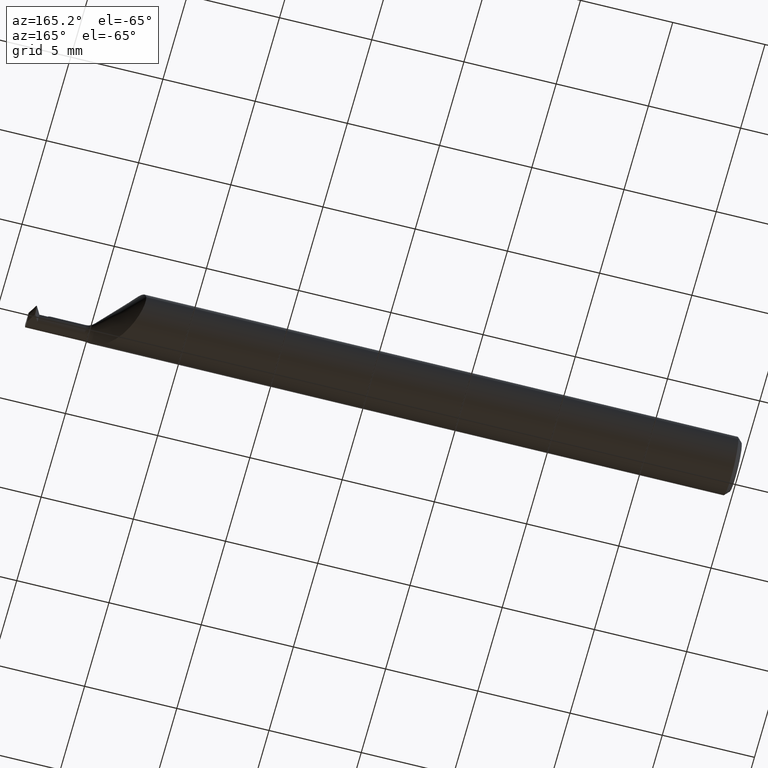
[diagram: clean part render]
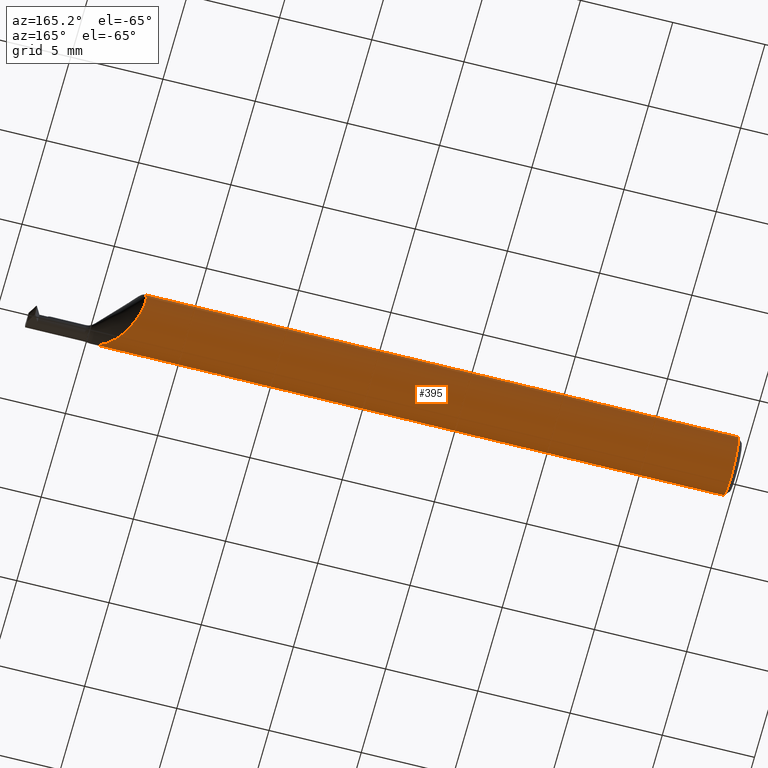
[diagram: same view with one face highlighted and labeled with its STEP entity id]
A machine part, auxiliary view. The second image highlights one B-rep face of the part: STEP entity #395.
In plain terms, the highlighted cylindrical surface (edge-blend (fillet) strip) has radius 1.5837 mm, axis along (-1, -0, -0).
Its self-contained STEP definition (entity closure, byte-faithful):
#22 = VERTEX_POINT ( 'NONE', #556 ) ;
#24 = DIRECTION ( 'NONE',  ( -1.000000000000000000, -0.000000000000000000, -0.000000000000000000 ) ) ;
#33 = VECTOR ( 'NONE', #242, 39.37007874015748143 ) ;
#36 = AXIS2_PLACEMENT_3D ( 'NONE', #572, #491, #684 ) ;
#41 = CARTESIAN_POINT ( 'NONE',  ( 1.459999999999999964, -0.06235000000000005121, 4.898587196589446663E-18 ) ) ;
#44 = CYLINDRICAL_SURFACE ( 'NONE', #559, 0.06235000000000000264 ) ;
#46 = CARTESIAN_POINT ( 'NONE',  ( 1.324061247341834946, -0.02612594253902928570, -0.05678370293744689629 ) ) ;
#53 = CARTESIAN_POINT ( 'NONE',  ( 1.378000000000000114, -0.06108080859774815685, 0.01251628223735995644 ) ) ;
#59 = CARTESIAN_POINT ( 'NONE',  ( 1.287253451677763394, 0.03386738844375224849, 0.05234999999999997294 ) ) ;
#72 = ORIENTED_EDGE ( 'NONE', *, *, #500, .T. ) ;
#78 = VECTOR ( 'NONE', #585, 39.37007874015748143 ) ;
#79 = FACE_OUTER_BOUND ( 'NONE', #706, .T. ) ;
#80 = CARTESIAN_POINT ( 'NONE',  ( 1.362456224277631245, -0.05899317650530151724, 0.02039327012283555923 ) ) ;
#84 = CARTESIAN_POINT ( 'NONE',  ( 1.287253451677763394, 0.03386738844375224849, 0.05234999999999997294 ) ) ;
#89 = CARTESIAN_POINT ( 'NONE',  ( 1.365005209892370397, -0.05976161622093305315, -0.01789465587661732970 ) ) ;
#92 = EDGE_CURVE ( 'NONE', #472, #298, #237, .T. ) ;
#95 = CARTESIAN_POINT ( 'NONE',  ( 1.447483717762639843, -0.06108080859774818461, 0.01251628223735992869 ) ) ;
#102 = EDGE_CURVE ( 'NONE', #337, #723, #127, .T. ) ;
#105 = CIRCLE ( 'NONE', #285, 0.06235000000000000264 ) ;
#106 = CIRCLE ( 'NONE', #36, 0.06235000000000000264 ) ;
#108 = CARTESIAN_POINT ( 'NONE',  ( 1.275712760655050904, 0.05835260926307878765, -0.02261421930734408559 ) ) ;
#114 = CARTESIAN_POINT ( 'NONE',  ( 0.009999999999999887451, 0.000000000000000000, -0.06235000000000000264 ) ) ;
#124 = CARTESIAN_POINT ( 'NONE',  ( 1.378000000000000114, -0.06108080859774815685, -0.01251628223735995644 ) ) ;
#127 = B_SPLINE_CURVE_WITH_KNOTS ( 'NONE', 3,
 ( #124, #530, #506, #89, #141, #198 ),
 .UNSPECIFIED., .F., .F.,
 ( 4, 2, 4 ),
 ( 1.961994360720521054E-07, 0.0002730078589434167965, 0.0005458195184507616104 ),
 .UNSPECIFIED. ) ;
#141 = CARTESIAN_POINT ( 'NONE',  ( 1.362455560994939807, -0.05899283946902385972, -0.02039411465581082022 ) ) ;
#165 = CARTESIAN_POINT ( 'NONE',  ( 1.327308089143396819, -0.03008542112412410791, -0.05478176896657324657 ) ) ;
#167 = CARTESIAN_POINT ( 'NONE',  ( 1.276697613269467624, 0.05614529015636074427, -0.02761977763396476770 ) ) ;
#172 = CARTESIAN_POINT ( 'NONE',  ( 1.286114260592217340, 0.03611629276998754717, -0.05106556953486436623 ) ) ;
#173 = VERTEX_POINT ( 'NONE', #389 ) ;
#174 = EDGE_CURVE ( 'NONE', #173, #647, #674, .T. ) ;
#188 =( BOUNDED_CURVE ( )  B_SPLINE_CURVE ( 3, ( #208, #656, #282, #276 ),
 .UNSPECIFIED., .F., .F. ) 
 B_SPLINE_CURVE_WITH_KNOTS ( ( 4, 4 ),
 ( 4.712388980384689674, 4.914504563857411412 ),
 .UNSPECIFIED. ) 
 CURVE ( )  GEOMETRIC_REPRESENTATION_ITEM ( )  RATIONAL_B_SPLINE_CURVE ( ( 1.000000000000000000, 0.9965986704452858280, 0.9965986704452858280, 1.000000000000000000 ) ) 
 REPRESENTATION_ITEM ( '' )  );
#198 = CARTESIAN_POINT ( 'NONE',  ( 1.360322330470336682, -0.05790887318343310858, -0.02311027707806772441 ) ) ;
#202 = CARTESIAN_POINT ( 'NONE',  ( 1.357101827099947089, -0.05627242694104554049, -0.02721082323776138553 ) ) ;
#208 = CARTESIAN_POINT ( 'NONE',  ( 1.459999999999999964, -0.06235000000000005121, 4.898587196589446663E-18 ) ) ;
#209 = CARTESIAN_POINT ( 'NONE',  ( 1.378000000000000114, -0.06108080859774815685, 0.01251628223735995644 ) ) ;
#216 = LINE ( 'NONE', #458, #78 ) ;
#217 = ORIENTED_EDGE ( 'NONE', *, *, #538, .F. ) ;
#222 = VECTOR ( 'NONE', #747, 39.37007874015748143 ) ;
#225 = CARTESIAN_POINT ( 'NONE',  ( 1.337096239893140082, -0.04069963399170441892, -0.04742870361374623700 ) ) ;
#234 = CARTESIAN_POINT ( 'NONE',  ( 1.279607297160832324, 0.04973386610369191774, 0.03908411801189477786 ) ) ;
#237 = LINE ( 'NONE', #488, #33 ) ;
#238 = EDGE_CURVE ( 'NONE', #516, #22, #105, .T. ) ;
#242 = DIRECTION ( 'NONE',  ( 1.000000000000000000, 0.000000000000000000, 0.000000000000000000 ) ) ;
#248 = LINE ( 'NONE', #681, #222 ) ;
#252 = CARTESIAN_POINT ( 'NONE',  ( 1.378000000000000114, -0.06108080859774815685, -0.01251628223735995644 ) ) ;
#256 = CARTESIAN_POINT ( 'NONE',  ( 1.500000000000000222, 0.000000000000000000, 0.000000000000000000 ) ) ;
#259 = DIRECTION ( 'NONE',  ( 1.000000000000000000, 0.000000000000000000, 0.000000000000000000 ) ) ;
#264 = EDGE_CURVE ( 'NONE', #472, #711, #106, .T. ) ;
#275 = CARTESIAN_POINT ( 'NONE',  ( 0.000000000000000000, 0.000000000000000000, 0.000000000000000000 ) ) ;
#276 = CARTESIAN_POINT ( 'NONE',  ( 1.447483717762639843, -0.06108080859774818461, 0.01251628223735992869 ) ) ;
#282 = CARTESIAN_POINT ( 'NONE',  ( 1.451605865465561029, -0.06192549230869275056, 0.008394134534439203973 ) ) ;
#283 = EDGE_CURVE ( 'NONE', #22, #420, #248, .T. ) ;
#285 = AXIS2_PLACEMENT_3D ( 'NONE', #256, #620, #560 ) ;
#286 = CIRCLE ( 'NONE', #374, 0.06235000000000000264 ) ;
#292 = CARTESIAN_POINT ( 'NONE',  ( 1.284172246949123686, 0.04010775790294555943, -0.04801607269110307746 ) ) ;
#294 = ORIENTED_EDGE ( 'NONE', *, *, #264, .T. ) ;
#298 = VERTEX_POINT ( 'NONE', #365 ) ;
#306 = B_SPLINE_CURVE_WITH_KNOTS ( 'NONE', 3,
 ( #584, #697, #513, #527, #341, #536 ),
 .UNSPECIFIED., .F., .F.,
 ( 4, 2, 4 ),
 ( 4.548525278132585488E-07, 0.0006130143515065053766, 0.001225573850485197442 ),
 .UNSPECIFIED. ) ;
#309 = CARTESIAN_POINT ( 'NONE',  ( 1.360322330470336682, -0.05790887318343310858, -0.02311027707806772441 ) ) ;
#316 = EDGE_CURVE ( 'NONE', #602, #741, #630, .T. ) ;
#317 = DIRECTION ( 'NONE',  ( -1.000000000000000000, -0.000000000000000000, -0.000000000000000000 ) ) ;
#326 = CARTESIAN_POINT ( 'NONE',  ( 1.370907247954247232, -0.06080279617227261207, 0.01395688338791106591 ) ) ;
#331 = CARTESIAN_POINT ( 'NONE',  ( 1.343777558969654340, -0.04681441024227128711, -0.04140474764091207210 ) ) ;
#332 = CARTESIAN_POINT ( 'NONE',  ( 1.364942088398638731, -0.05974776359960013578, 0.01794378335571891747 ) ) ;
#334 = DIRECTION ( 'NONE',  ( 0.000000000000000000, 0.000000000000000000, -1.000000000000000000 ) ) ;
#337 = VERTEX_POINT ( 'NONE', #252 ) ;
#341 = CARTESIAN_POINT ( 'NONE',  ( 1.355520687460885387, -0.05546899663110580608, 0.02922402904108691024 ) ) ;
#344 = ORIENTED_EDGE ( 'NONE', *, *, #617, .F. ) ;
#362 = EDGE_CURVE ( 'NONE', #711, #741, #286, .T. ) ;
#365 = CARTESIAN_POINT ( 'NONE',  ( 1.330692836829395986, -0.03386738844375224849, 0.05234999999999997294 ) ) ;
#374 = AXIS2_PLACEMENT_3D ( 'NONE', #598, #259, #334 ) ;
#377 = EDGE_CURVE ( 'NONE', #298, #173, #306, .T. ) ;
#389 = CARTESIAN_POINT ( 'NONE',  ( 1.360322330470336682, -0.05790887318343310858, 0.02311027707806772441 ) ) ;
#394 = CARTESIAN_POINT ( 'NONE',  ( 1.347145335385850240, -0.04954905416256632361, -0.03808608969188009147 ) ) ;
#395 = ADVANCED_FACE ( 'NONE', ( #79 ), #44, .T. ) ;
#410 = CARTESIAN_POINT ( 'NONE',  ( 1.317786535252882141, -0.01787687724439776527, -0.05989466631370112676 ) ) ;
#412 = CARTESIAN_POINT ( 'NONE',  ( 1.292791935424213667, 0.02301952229598921637, -0.05814226267403477949 ) ) ;
#420 = VERTEX_POINT ( 'NONE', #41 ) ;
#421 = CARTESIAN_POINT ( 'NONE',  ( 1.273842464512773054, 0.06258262008723719516, 0.009499717342791841324 ) ) ;
#444 = DIRECTION ( 'NONE',  ( 0.000000000000000000, 0.000000000000000000, 1.000000000000000000 ) ) ;
#450 = CARTESIAN_POINT ( 'NONE',  ( 1.353792540604319194, -0.05426751161431837139, -0.03099509928380111967 ) ) ;
#458 = CARTESIAN_POINT ( 'NONE',  ( 1.425116490632940547, -0.06108080859774817073, 0.01251628223735992695 ) ) ;
#463 = CARTESIAN_POINT ( 'NONE',  ( 0.009999999999999887451, -0.03386738844375224849, 0.05234999999999997294 ) ) ;
#472 = VERTEX_POINT ( 'NONE', #463 ) ;
#473 = CARTESIAN_POINT ( 'NONE',  ( 1.300373745871525877, 0.009259096644930046513, -0.06183418782902093402 ) ) ;
#476 = CARTESIAN_POINT ( 'NONE',  ( 1.274006419052366557, 0.06220942500752920518, -0.006880156747974974611 ) ) ;
#481 = CARTESIAN_POINT ( 'NONE',  ( 1.283010508747750134, 0.04236988208249314880, 0.04684938386239212438 ) ) ;
#484 = CARTESIAN_POINT ( 'NONE',  ( 1.274377283033575337, 0.06136254998254018350, -0.01229094716978552070 ) ) ;
#488 = CARTESIAN_POINT ( 'NONE',  ( 0.000000000000000000, -0.03386738844375224849, 0.05234999999999997294 ) ) ;
#491 = DIRECTION ( 'NONE',  ( 1.000000000000000000, 0.000000000000000000, 0.000000000000000000 ) ) ;
#500 = EDGE_CURVE ( 'NONE', #420, #546, #188, .T. ) ;
#502 = ORIENTED_EDGE ( 'NONE', *, *, #283, .T. ) ;
#506 = CARTESIAN_POINT ( 'NONE',  ( 1.370917692584105119, -0.06080192119646981447, -0.01395692878461883731 ) ) ;
#513 = CARTESIAN_POINT ( 'NONE',  ( 1.340505920230756987, -0.04407328980518915307, 0.04455752559564368775 ) ) ;
#516 = VERTEX_POINT ( 'NONE', #714 ) ;
#527 = CARTESIAN_POINT ( 'NONE',  ( 1.350452293667162129, -0.05214961350147363783, 0.03475982987739655028 ) ) ;
#530 = CARTESIAN_POINT ( 'NONE',  ( 1.374350645160948625, -0.06108080859774817767, -0.01251628223735992869 ) ) ;
#536 = CARTESIAN_POINT ( 'NONE',  ( 1.360322330470336682, -0.05790887318343310858, 0.02311027707806772441 ) ) ;
#538 = EDGE_CURVE ( 'NONE', #647, #546, #216, .T. ) ;
#540 = CARTESIAN_POINT ( 'NONE',  ( 1.333810298333626188, -0.03735105319157269038, -0.05011061365422706665 ) ) ;
#543 = CARTESIAN_POINT ( 'NONE',  ( 1.297761274213311111, 0.01387756083872426771, -0.06097404710825342355 ) ) ;
#546 = VERTEX_POINT ( 'NONE', #95 ) ;
#548 = CARTESIAN_POINT ( 'NONE',  ( 1.305905219256007666, -2.666510699494835889E-05, -0.06252357110823776598 ) ) ;
#556 = CARTESIAN_POINT ( 'NONE',  ( 1.500000000000000222, -0.06235000000000000264, 0.000000000000000000 ) ) ;
#559 = AXIS2_PLACEMENT_3D ( 'NONE', #275, #24, #444 ) ;
#560 = DIRECTION ( 'NONE',  ( 0.000000000000000000, 0.000000000000000000, 1.000000000000000000 ) ) ;
#572 = CARTESIAN_POINT ( 'NONE',  ( 0.009999999999999887451, 0.000000000000000000, 0.000000000000000000 ) ) ;
#584 = CARTESIAN_POINT ( 'NONE',  ( 1.330692836829395986, -0.03386738844375224849, 0.05234999999999997294 ) ) ;
#585 = DIRECTION ( 'NONE',  ( 1.000000000000000000, -7.628429393907824443E-17, 0.000000000000000000 ) ) ;
#598 = CARTESIAN_POINT ( 'NONE',  ( 0.009999999999999887451, 0.000000000000000000, 0.000000000000000000 ) ) ;
#599 = CARTESIAN_POINT ( 'NONE',  ( 1.360322330470336682, -0.05790887318343310858, -0.02311027707806772441 ) ) ;
#602 = VERTEX_POINT ( 'NONE', #84 ) ;
#604 = ORIENTED_EDGE ( 'NONE', *, *, #362, .T. ) ;
#608 = EDGE_CURVE ( 'NONE', #723, #602, #658, .T. ) ;
#611 = CARTESIAN_POINT ( 'NONE',  ( 1.425116490632940547, -0.06108080859774817073, -0.01251628223735992695 ) ) ;
#617 = EDGE_CURVE ( 'NONE', #516, #337, #730, .T. ) ;
#620 = DIRECTION ( 'NONE',  ( -1.000000000000000000, -0.000000000000000000, -0.000000000000000000 ) ) ;
#625 = VECTOR ( 'NONE', #317, 39.37007874015748143 ) ;
#630 = LINE ( 'NONE', #687, #625 ) ;
#640 = CARTESIAN_POINT ( 'NONE',  ( 1.360322330470336682, -0.05790887318343310858, 0.02311027707806772441 ) ) ;
#647 = VERTEX_POINT ( 'NONE', #53 ) ;
#656 = CARTESIAN_POINT ( 'NONE',  ( 1.455792198643444779, -0.06235000000000000958, 0.004207801356555411661 ) ) ;
#658 = B_SPLINE_CURVE_WITH_KNOTS ( 'NONE', 3,
 ( #599, #202, #450, #394, #331, #225, #540, #165, #46, #410, #726, #670, #548, #473, #543, #412, #779, #172, #292, #791, #724, #167, #108, #484, #476, #421, #666, #234, #481, #59 ),
 .UNSPECIFIED., .F., .F.,
 ( 4, 2, 2, 2, 2, 2, 2, 2, 2, 2, 2, 2, 2, 2, 4 ),
 ( 3.354477029340792193E-07, 0.0004119227835304740135, 0.0008235101193580138777, 0.001235097455185553850, 0.001646684791013093823, 0.002058272126840633362, 0.002469859462668173335, 0.002881446798495713307, 0.003293034134323253280, 0.003704621470150793253, 0.004116208805978333225, 0.004527796141805873198, 0.004939383477633413171, 0.005762558149288493116, 0.006585732820943573061 ),
 .UNSPECIFIED. ) ;
#666 = CARTESIAN_POINT ( 'NONE',  ( 1.275006673173756822, 0.05988986606016014069, 0.02035263279489296293 ) ) ;
#669 = VECTOR ( 'NONE', #736, 39.37007874015748143 ) ;
#670 = CARTESIAN_POINT ( 'NONE',  ( 1.308827058919708630, -0.004690277908674495531, -0.06233568407882179169 ) ) ;
#671 = ORIENTED_EDGE ( 'NONE', *, *, #238, .T. ) ;
#674 = B_SPLINE_CURVE_WITH_KNOTS ( 'NONE', 3,
 ( #640, #80, #332, #326, #765, #209 ),
 .UNSPECIFIED., .F., .F.,
 ( 4, 2, 4 ),
 ( 3.346069241322871328E-07, 0.0002723149243493488622, 0.0005442952417745655158 ),
 .UNSPECIFIED. ) ;
#681 = CARTESIAN_POINT ( 'NONE',  ( 2.249639673992804202E-32, -0.06234999999999999570, 1.836970198721036837E-16 ) ) ;
#684 = DIRECTION ( 'NONE',  ( 0.000000000000000000, 0.000000000000000000, -1.000000000000000000 ) ) ;
#687 = CARTESIAN_POINT ( 'NONE',  ( 0.000000000000000000, 0.03386738844375224849, 0.05234999999999997294 ) ) ;
#688 = ORIENTED_EDGE ( 'NONE', *, *, #316, .F. ) ;
#697 = CARTESIAN_POINT ( 'NONE',  ( 1.335595219359921204, -0.03933194670942939675, 0.04881475038286139934 ) ) ;
#706 = EDGE_LOOP ( 'NONE', ( #344, #671, #502, #72, #217, #756, #745, #715, #294, #604, #688, #774, #785 ) ) ;
#711 = VERTEX_POINT ( 'NONE', #114 ) ;
#714 = CARTESIAN_POINT ( 'NONE',  ( 1.500000000000000222, -0.06108080859774799726, -0.01251628223735990787 ) ) ;
#715 = ORIENTED_EDGE ( 'NONE', *, *, #92, .F. ) ;
#723 = VERTEX_POINT ( 'NONE', #309 ) ;
#724 = CARTESIAN_POINT ( 'NONE',  ( 1.279165243974473620, 0.05072947308261328142, -0.03662876307018862743 ) ) ;
#726 = CARTESIAN_POINT ( 'NONE',  ( 1.314750412668301616, -0.01358512118808107710, -0.06101787196174927180 ) ) ;
#730 = LINE ( 'NONE', #611, #669 ) ;
#736 = DIRECTION ( 'NONE',  ( -1.000000000000000000, 7.628429393907824443E-17, -0.000000000000000000 ) ) ;
#741 = VERTEX_POINT ( 'NONE', #750 ) ;
#745 = ORIENTED_EDGE ( 'NONE', *, *, #377, .F. ) ;
#747 = DIRECTION ( 'NONE',  ( -1.000000000000000000, -0.000000000000000000, -0.000000000000000000 ) ) ;
#750 = CARTESIAN_POINT ( 'NONE',  ( 0.009999999999999887451, 0.03386738844375224849, 0.05234999999999997294 ) ) ;
#756 = ORIENTED_EDGE ( 'NONE', *, *, #174, .F. ) ;
#765 = CARTESIAN_POINT ( 'NONE',  ( 1.374352248459023818, -0.06108080859774818461, 0.01251628223735994430 ) ) ;
#774 = ORIENTED_EDGE ( 'NONE', *, *, #608, .F. ) ;
#779 = CARTESIAN_POINT ( 'NONE',  ( 1.290410021082478043, 0.02759665915572551836, -0.05612934525549208992 ) ) ;
#785 = ORIENTED_EDGE ( 'NONE', *, *, #102, .F. ) ;
#791 = CARTESIAN_POINT ( 'NONE',  ( 1.280676283469393884, 0.04745897084256570780, -0.04076544575057513414 ) ) ;